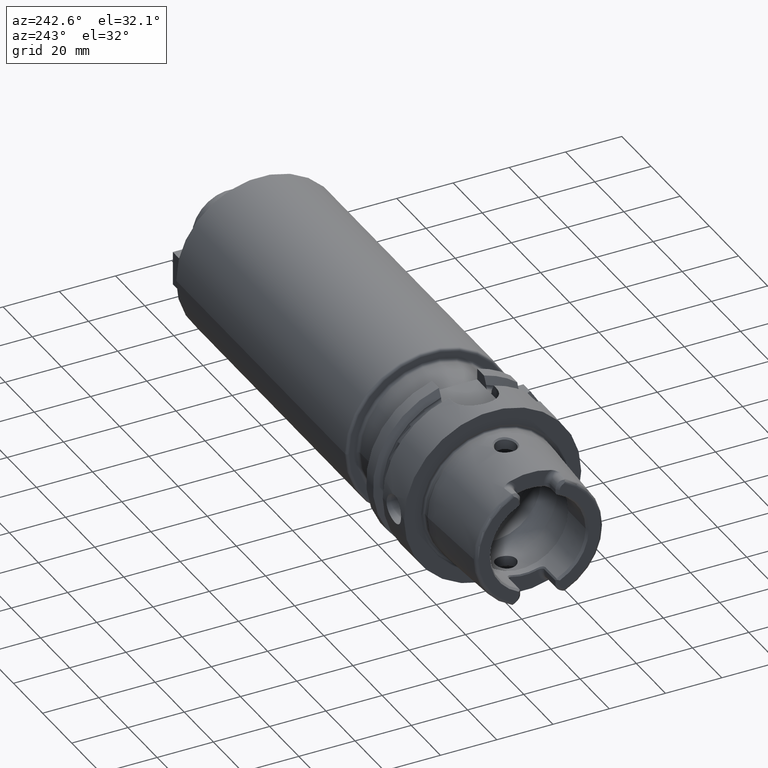
[diagram: clean part render]
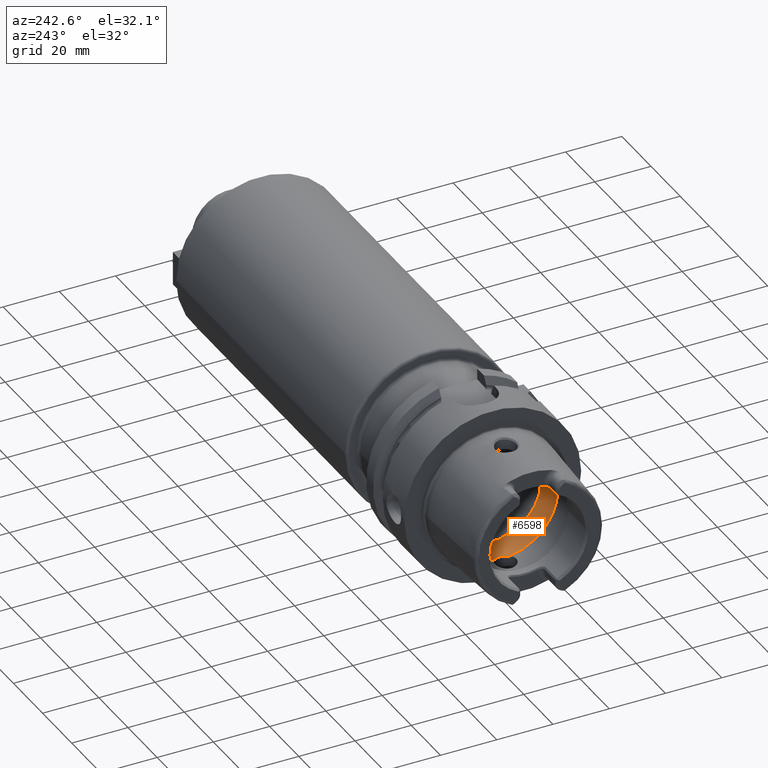
[diagram: same view with one face highlighted and labeled with its STEP entity id]
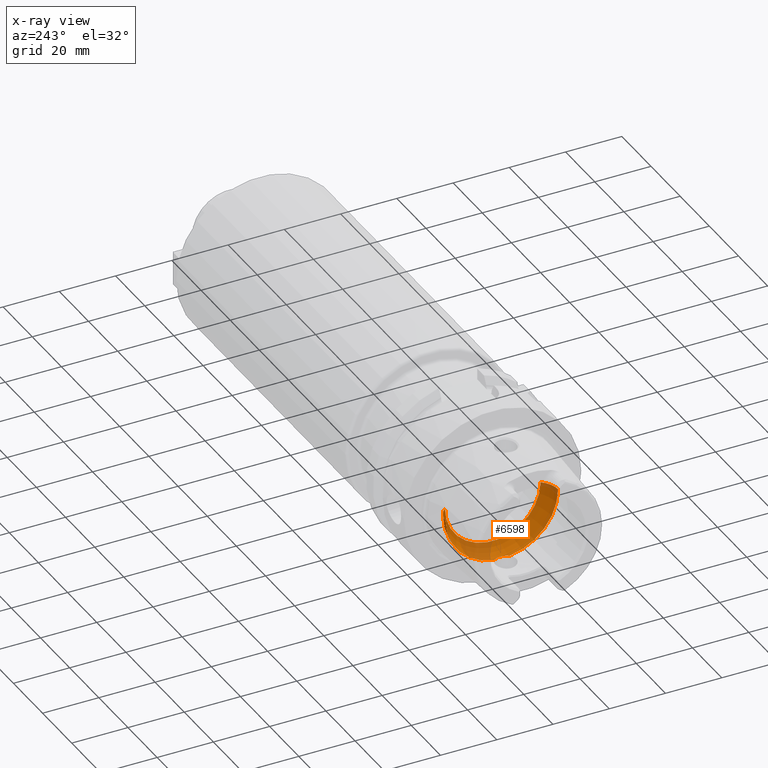
[diagram: x-ray of the same camera — body ghosted, the highlighted face saturated]
A machine part, auxiliary view. The second image highlights one B-rep face of the part: STEP entity #6598.
The next image is the same camera in x-ray: the body ghosted, the highlighted face saturated — about 22% of this face is hidden behind the body in this view.
In plain terms, the highlighted toroidal blend (fillet) surface has major radius 12 mm and minor (blend) radius 8 mm.
Its self-contained STEP definition (entity closure, byte-faithful):
#2586=CARTESIAN_POINT('',(-6.344997998398E0,0.E0,0.E0));
#2587=DIRECTION('',(-1.E0,0.E0,0.E0));
#2588=DIRECTION('',(0.E0,-1.324147307845E-1,-9.911944002421E-1));
#2589=AXIS2_PLACEMENT_3D('',#2586,#2587,#2588);
#2599=CARTESIAN_POINT('',(-6.344997998398E0,0.E0,0.E0));
#2600=DIRECTION('',(-1.E0,0.E0,0.E0));
#2601=DIRECTION('',(0.E0,1.E0,0.E0));
#2602=AXIS2_PLACEMENT_3D('',#2599,#2600,#2601);
#2604=CARTESIAN_POINT('',(-6.344997998398E0,2.648294615690E0,
-1.982388800484E1));
#2605=CARTESIAN_POINT('',(-6.231006837183E0,2.534014746903E0,
-1.983915477598E1));
#2606=CARTESIAN_POINT('',(-6.017025196500E0,2.289847772066E0,
-1.986482090135E1));
#2607=CARTESIAN_POINT('',(-5.744951143506E0,1.883597112482E0,
-1.989126748234E1));
#2608=CARTESIAN_POINT('',(-5.525878619397E0,1.440092942940E0,
-1.990841427492E1));
#2609=CARTESIAN_POINT('',(-5.367928580614E0,9.752961668640E-1,
-1.991846807626E1));
#2610=CARTESIAN_POINT('',(-5.271318281982E0,4.905129038781E-1,
-1.992366853166E1));
#2611=CARTESIAN_POINT('',(-5.25E0,1.634283701959E-1,-1.992470689575E1));
#2612=CARTESIAN_POINT('',(-5.25E0,0.E0,-1.992470689575E1));
#2614=CARTESIAN_POINT('',(-6.344997998398E0,1.2E1,0.E0));
#2615=DIRECTION('',(0.E0,0.E0,1.E0));
#2616=DIRECTION('',(7.806247497998E-1,6.25E-1,0.E0));
#2617=AXIS2_PLACEMENT_3D('',#2614,#2615,#2616);
#2619=CARTESIAN_POINT('',(-1.E-1,0.E0,0.E0));
#2620=DIRECTION('',(-1.E0,0.E0,0.E0));
#2621=DIRECTION('',(0.E0,1.E0,0.E0));
#2622=AXIS2_PLACEMENT_3D('',#2619,#2620,#2621);
#2624=CARTESIAN_POINT('',(-6.344997998398E0,-1.2E1,0.E0));
#2625=DIRECTION('',(0.E0,0.E0,-1.E0));
#2626=DIRECTION('',(7.806247497998E-1,-6.25E-1,0.E0));
#2627=AXIS2_PLACEMENT_3D('',#2624,#2625,#2626);
#2629=CARTESIAN_POINT('',(-5.25E0,0.E0,-1.992470689575E1));
#2630=CARTESIAN_POINT('',(-5.25E0,-1.633406105217E-1,-1.992470689575E1));
#2631=CARTESIAN_POINT('',(-5.271288835069E0,-4.903023440841E-1,
-1.992367004204E1));
#2632=CARTESIAN_POINT('',(-5.367909615515E0,-9.752378390196E-1,
-1.991846919896E1));
#2633=CARTESIAN_POINT('',(-5.525833514658E0,-1.439976302563E0,
-1.990841729053E1));
#2634=CARTESIAN_POINT('',(-5.744910891080E0,-1.883544144465E0,
-1.989127157512E1));
#2635=CARTESIAN_POINT('',(-6.017104191130E0,-2.289956477197E0,
-1.986481279983E1));
#2636=CARTESIAN_POINT('',(-6.231050600033E0,-2.534058620591E0,
-1.983914891484E1));
#2637=CARTESIAN_POINT('',(-6.344997998398E0,-2.648294615690E0,
-1.982388800484E1));
#2893=CARTESIAN_POINT('',(-1.E-1,1.7E1,0.E0));
#2894=VERTEX_POINT('',#2893);
#2895=CARTESIAN_POINT('',(-6.344997998398E0,2.E1,0.E0));
#2896=VERTEX_POINT('',#2895);
#2905=CARTESIAN_POINT('',(-1.E-1,-1.7E1,0.E0));
#2906=VERTEX_POINT('',#2905);
#2907=CARTESIAN_POINT('',(-6.344997998398E0,-2.E1,0.E0));
#2908=VERTEX_POINT('',#2907);
#3080=VERTEX_POINT('',#2604);
#3081=VERTEX_POINT('',#2612);
#3082=VERTEX_POINT('',#2637);
#6583=CARTESIAN_POINT('',(-6.344997998398E0,0.E0,0.E0));
#6584=DIRECTION('',(1.E0,0.E0,0.E0));
#6585=DIRECTION('',(0.E0,-1.E0,0.E0));
#6586=AXIS2_PLACEMENT_3D('',#6583,#6584,#6585);
#6587=TOROIDAL_SURFACE('',#6586,1.2E1,8.E0);
#6588=ORIENTED_EDGE('',*,*,#6521,.F.);
#6589=ORIENTED_EDGE('',*,*,#6578,.F.);
#6590=ORIENTED_EDGE('',*,*,#6540,.F.);
#6592=ORIENTED_EDGE('',*,*,#6591,.T.);
#6593=ORIENTED_EDGE('',*,*,#6536,.T.);
#6594=ORIENTED_EDGE('',*,*,#6572,.F.);
#6595=ORIENTED_EDGE('',*,*,#6285,.F.);
#6596=EDGE_LOOP('',(#6588,#6589,#6590,#6592,#6593,#6594,#6595));
#6597=FACE_OUTER_BOUND('',#6596,.F.);
#6598=ADVANCED_FACE('',(#6597),#6587,.F.);
#2590=CIRCLE('',#2589,2.E1);
#2603=CIRCLE('',#2602,2.E1);
#2613=B_SPLINE_CURVE_WITH_KNOTS('',3,(#2604,#2605,#2606,#2607,#2608,#2609,#2610,
#2611,#2612),.UNSPECIFIED.,.F.,.F.,(4,1,1,1,1,1,4),(0.E0,1.666666666667E-1,
3.333333333333E-1,5.E-1,6.666666666667E-1,8.333333333333E-1,1.E0),
.UNSPECIFIED.);
#2618=CIRCLE('',#2617,8.E0);
#2623=CIRCLE('',#2622,1.7E1);
#2628=CIRCLE('',#2627,8.E0);
#2638=B_SPLINE_CURVE_WITH_KNOTS('',3,(#2629,#2630,#2631,#2632,#2633,#2634,#2635,
#2636,#2637),.UNSPECIFIED.,.F.,.F.,(4,1,1,1,1,1,4),(0.E0,1.666666666667E-1,
3.333333333333E-1,5.E-1,6.666666666667E-1,8.333333333333E-1,1.E0),
.UNSPECIFIED.);
#6285=EDGE_CURVE('',#3081,#3082,#2638,.T.);
#6521=EDGE_CURVE('',#3080,#3081,#2613,.T.);
#6536=EDGE_CURVE('',#2906,#2908,#2628,.T.);
#6540=EDGE_CURVE('',#2894,#2896,#2618,.T.);
#6572=EDGE_CURVE('',#3082,#2908,#2590,.T.);
#6578=EDGE_CURVE('',#2896,#3080,#2603,.T.);
#6591=EDGE_CURVE('',#2894,#2906,#2623,.T.);